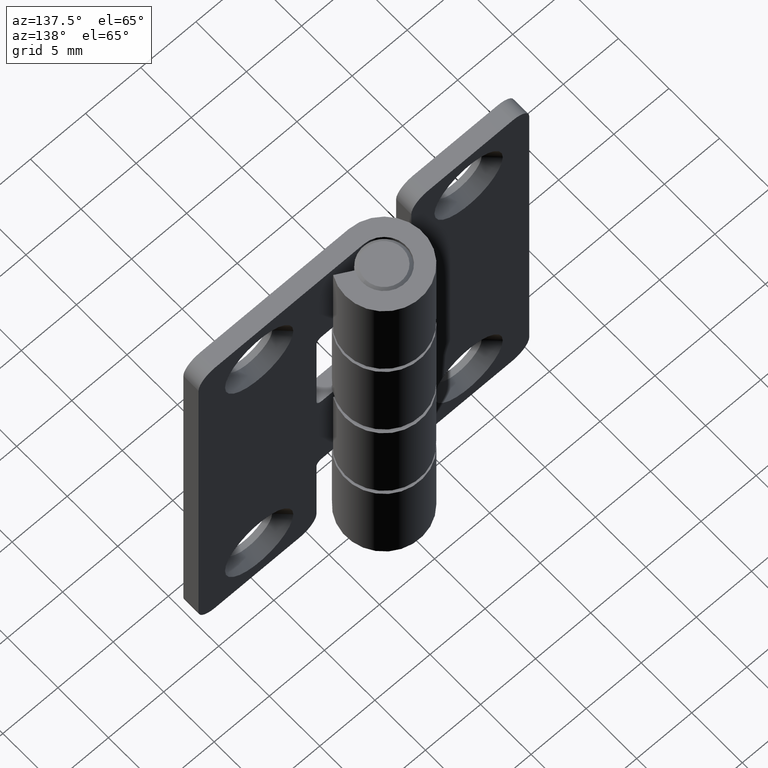
[diagram: clean part render]
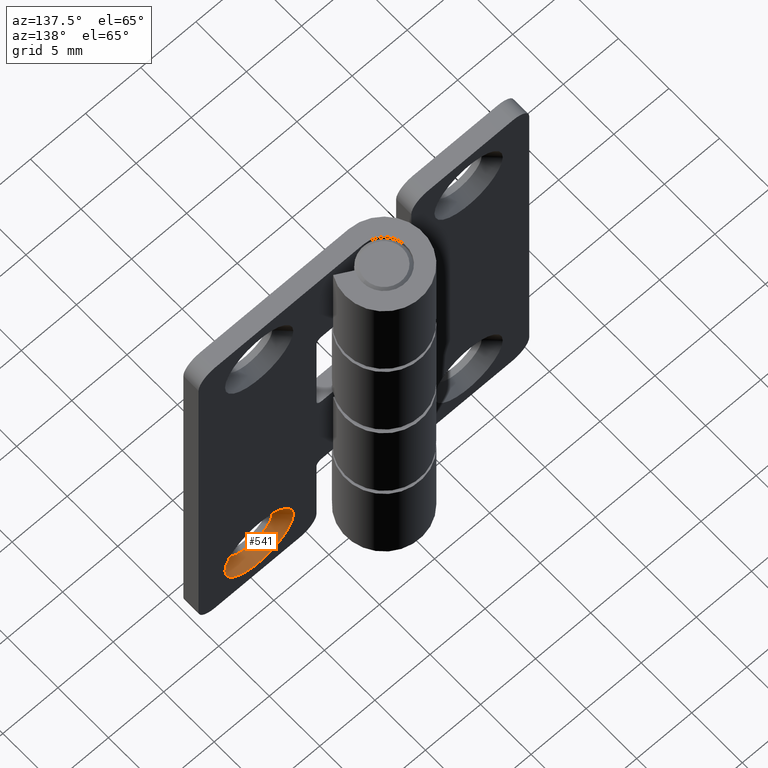
[diagram: same view with one face highlighted and labeled with its STEP entity id]
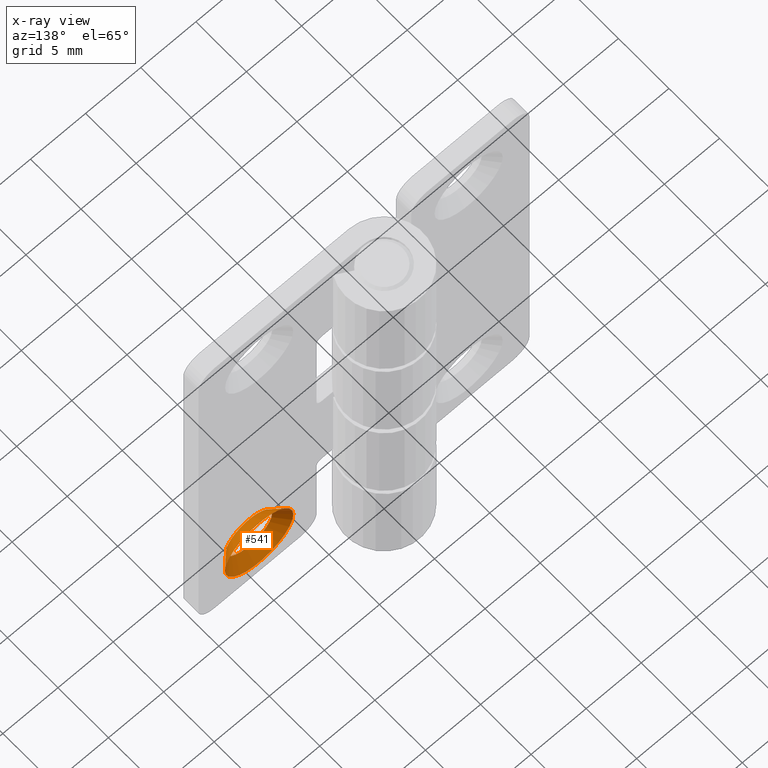
[diagram: x-ray of the same camera — body ghosted, the highlighted face saturated]
A machine part, auxiliary view. The second image highlights one B-rep face of the part: STEP entity #541.
The next image is the same camera in x-ray: the body ghosted, the highlighted face saturated — about 0% of this face is hidden behind the body in this view.
In plain terms, the highlighted conical surface has half-angle 45 deg.
Its self-contained STEP definition (entity closure, byte-faithful):
#37=CONICAL_SURFACE('',#597,2.6,0.785398163397448);
#43=FACE_BOUND('',#119,.T.);
#85=FACE_OUTER_BOUND('',#118,.T.);
#118=EDGE_LOOP('',(#465));
#119=EDGE_LOOP('',(#466));
#233=CIRCLE('',#579,3.1);
#241=CIRCLE('',#598,2.1);
#280=VERTEX_POINT('',#876);
#291=VERTEX_POINT('',#919);
#338=EDGE_CURVE('',#280,#280,#233,.T.);
#359=EDGE_CURVE('',#291,#291,#241,.T.);
#465=ORIENTED_EDGE('',*,*,#359,.F.);
#466=ORIENTED_EDGE('',*,*,#338,.F.);
#541=ADVANCED_FACE('',(#85,#43),#37,.F.);
#579=AXIS2_PLACEMENT_3D('',#877,#695,#696);
#597=AXIS2_PLACEMENT_3D('',#918,#744,#745);
#598=AXIS2_PLACEMENT_3D('',#920,#746,#747);
#695=DIRECTION('center_axis',(2.40548322002117E-16,-1.,0.));
#696=DIRECTION('ref_axis',(1.,2.40548322002117E-16,0.));
#744=DIRECTION('center_axis',(-2.40548322002117E-16,1.,0.));
#745=DIRECTION('ref_axis',(1.,2.40548322002117E-16,0.));
#746=DIRECTION('center_axis',(-2.40548322002117E-16,1.,0.));
#747=DIRECTION('ref_axis',(1.,2.40548322002117E-16,0.));
#876=CARTESIAN_POINT('',(6.4,-2.,-14.5));
#877=CARTESIAN_POINT('Origin',(9.5,-2.,-14.5));
#918=CARTESIAN_POINT('Origin',(9.5,-2.5,-14.5));
#919=CARTESIAN_POINT('',(7.4,-3.,-14.5));
#920=CARTESIAN_POINT('Origin',(9.5,-2.99999999999999,-14.5));